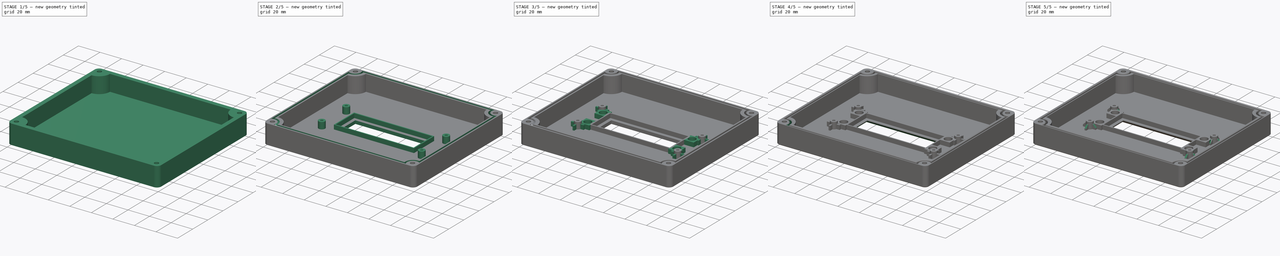
[diagram: build sequence overview — one tinted view per stage of 5, left to right]
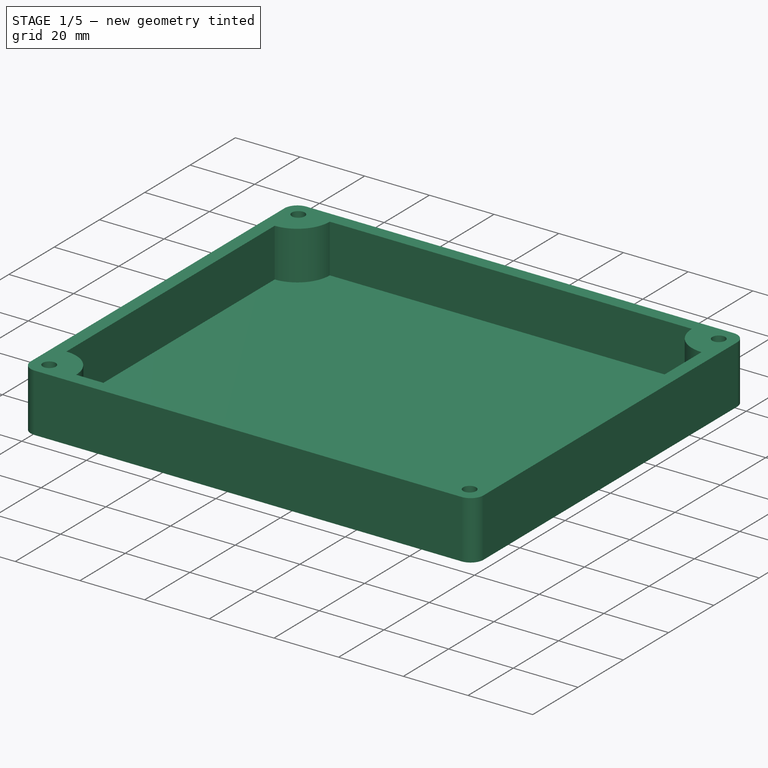
[diagram: stage 1 of 5 — iso view after this stage's code; geometry added in this stage tinted green]
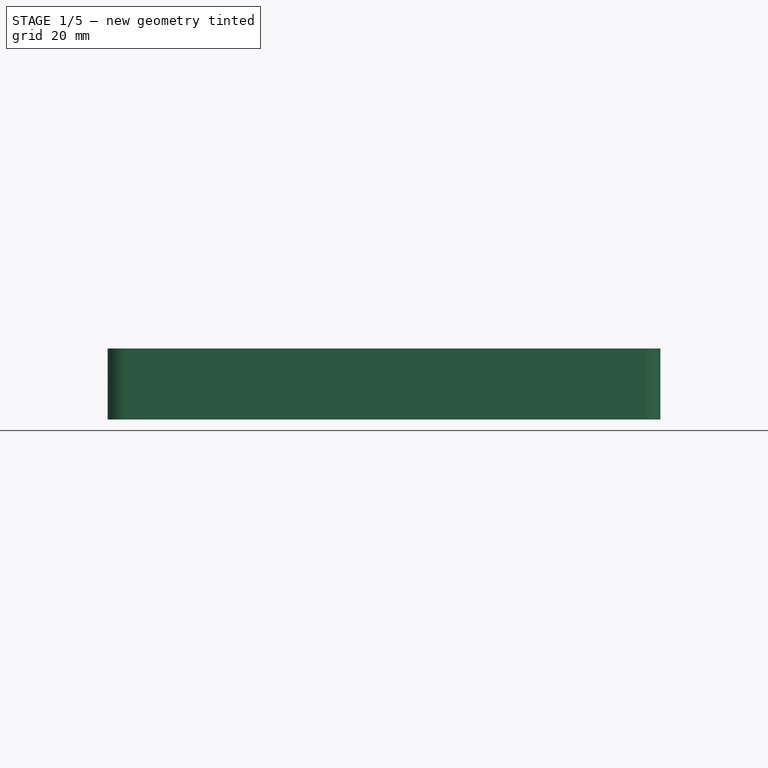
[diagram: stage 1 of 5 — front view after this stage's code; geometry added in this stage tinted green]
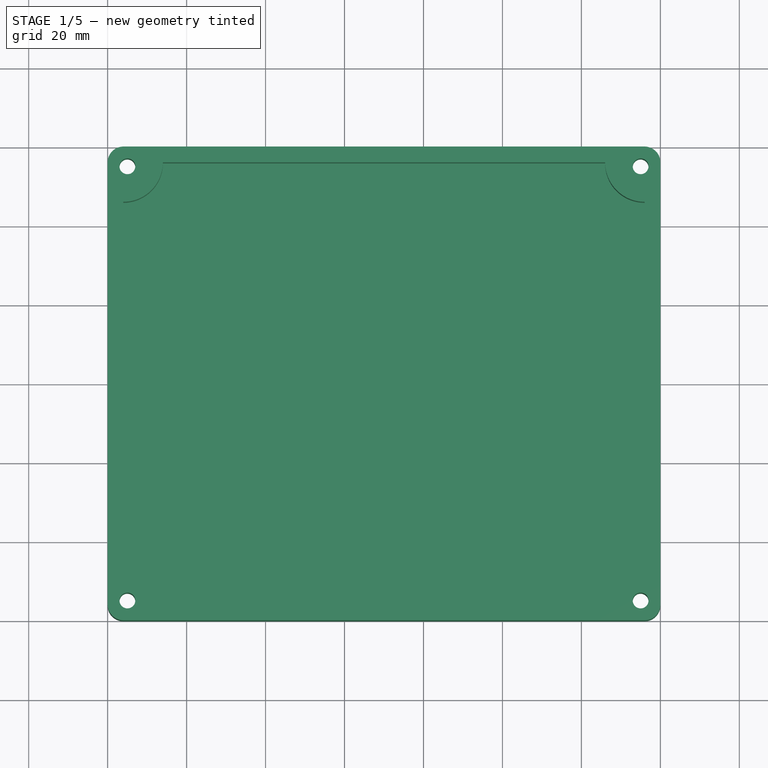
[diagram: stage 1 of 5 — top view after this stage's code; geometry added in this stage tinted green]
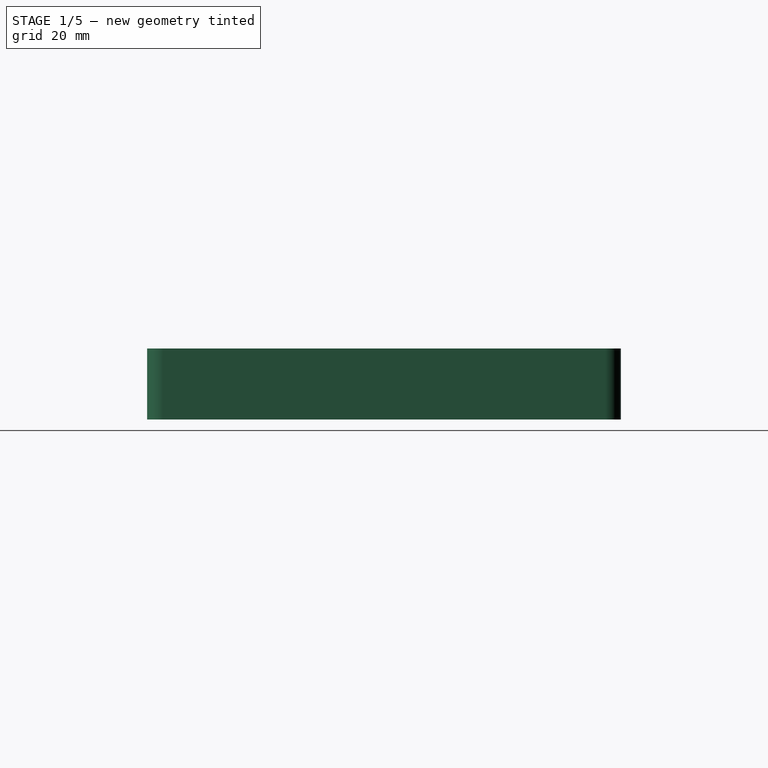
[diagram: stage 1 of 5 — right view after this stage's code; geometry added in this stage tinted green]
FCSTD DOCUMENT  (FreeCAD 0.19R24267 +148 (Git))
Label: outdoor_unit_case_topv2.1
License: All rights reserved
LicenseURL: http://en.wikipedia.org/wiki/All_rights_reserved
objects: Sketcher::SketchObject×10, PartDesign::Chamfer×7, PartDesign::Pad×6, PartDesign::Pocket×4, PartDesign::Body×1
note: 45 computed .brp shape members not serialized (recipe doc carries the construction recipe); baked Part::Feature solids carry a one-line shape summary decoded from their .brp

FEATURE [Sketcher::SketchObject] Sketch
  FullyConstrained = true
  MapMode = 5
  Support = -> [XY_Plane]
  sketch-geometry (12):
    g0: LineSegment StartX=4 StartY=0 StartZ=0 EndX=136 EndY=0 EndZ=0
    g1: LineSegment StartX=140 StartY=4 StartZ=0 EndX=140 EndY=116 EndZ=0
    g2: LineSegment StartX=136 StartY=120 StartZ=0 EndX=4 EndY=120 EndZ=0
    g3: LineSegment StartX=0 StartY=116 StartZ=0 EndX=0 EndY=4 EndZ=0
    g4: LineSegment StartX=4 StartY=116 StartZ=0 EndX=136 EndY=116 EndZ=0
    g5: LineSegment StartX=136 StartY=116 StartZ=0 EndX=136 EndY=4 EndZ=0
    g6: LineSegment StartX=136 StartY=4 StartZ=0 EndX=4 EndY=4 EndZ=0
    g7: LineSegment StartX=4 StartY=4 StartZ=0 EndX=4 EndY=116 EndZ=0
    g8: ArcOfCircle CenterX=4 CenterY=4 CenterZ=0 NormalX=0 NormalY=0 NormalZ=1 AngleXU=0 Radius=4 StartAngle=3.14159 EndAngle=4.71239
    g9: ArcOfCircle CenterX=136 CenterY=4 CenterZ=0 NormalX=0 NormalY=0 NormalZ=1 AngleXU=0 Radius=4 StartAngle=4.71239 EndAngle=6.28319
    g10: ArcOfCircle CenterX=136 CenterY=116 CenterZ=0 NormalX=0 NormalY=0 NormalZ=1 AngleXU=0 Radius=4 StartAngle=-9e-16 EndAngle=1.5708
    g11: ArcOfCircle CenterX=4 CenterY=116 CenterZ=0 NormalX=0 NormalY=0 NormalZ=1 AngleXU=0 Radius=4 StartAngle=1.5708 EndAngle=3.14159
  constraints (28):
    c: Horizontal(g0)
    c: Horizontal(g2)
    c: Vertical(g1)
    c: Vertical(g3)
    c: Coincident(g4,g5)
    c: Coincident(g5,g6)
    c: Coincident(g6,g7)
    c: Coincident(g7,g4)
    c: Horizontal(g4)
    c: Horizontal(g6)
    c: Vertical(g5)
    c: Tangent(g3,g8) = -1.5708
    c: Tangent(g0,g8) = -1.5708
    c: Tangent(g0,g9) = -1.5708
    c: Tangent(g1,g9) = -1.5708
    c: Tangent(g2,g10) = -1.5708
    c: Tangent(g1,g10) = -1.5708
    c: Tangent(g3,g11) = -1.5708
    c: Tangent(g2,g11) = -1.5708
    c: Coincident(g11,g4)
    c: Coincident(g10,g4)
    c: Coincident(g5,g9)
    c: Coincident(g6,g8)
    c: PointOnObject(g3,g-2)
    c: PointOnObject(g0,g-1)
    c: DistanceX(g3,g8) = 4
    c: DistanceY(g0,g2) = 120
    c: DistanceX(g3,g1) = 140
FEATURE [PartDesign::Pad] Pad
  Direction = (1,1,1)
  Length = 3
  Length2 = 100
  Profile = -> Sketch
  Type = 0
FEATURE [Sketcher::SketchObject] Sketch001
  FullyConstrained = true
  MapMode = 5
  Placement = pos=(0,0,3) rot=(0,0,1;0rad)
  Support = -> [Pad]
  sketch-geometry (20):
    g0: LineSegment StartX=4 StartY=0 StartZ=0 EndX=136 EndY=0 EndZ=0
    g1: LineSegment StartX=140 StartY=4 StartZ=0 EndX=140 EndY=116 EndZ=0
    g2: LineSegment StartX=136 StartY=120 StartZ=0 EndX=4 EndY=120 EndZ=0
    g3: LineSegment StartX=0 StartY=116 StartZ=0 EndX=0 EndY=4 EndZ=0
    g4: LineSegment StartX=4 StartY=116 StartZ=0 EndX=136 EndY=116 EndZ=0
    g5: LineSegment StartX=136 StartY=116 StartZ=0 EndX=136 EndY=4 EndZ=0
    g6: LineSegment StartX=136 StartY=4 StartZ=0 EndX=4 EndY=4 EndZ=0
    g7: LineSegment StartX=4 StartY=4 StartZ=0 EndX=4 EndY=116 EndZ=0
    g8: LineSegment StartX=14 StartY=116 StartZ=0 EndX=126 EndY=116 EndZ=0
    g9: LineSegment StartX=136 StartY=106 StartZ=0 EndX=136 EndY=14 EndZ=0
    g10: LineSegment StartX=126 StartY=4 StartZ=0 EndX=14 EndY=4 EndZ=0
    g11: LineSegment StartX=4 StartY=14 StartZ=0 EndX=4 EndY=106 EndZ=0
    g12: ArcOfCircle CenterX=4 CenterY=116 CenterZ=0 NormalX=0 NormalY=0 NormalZ=1 AngleXU=0 Radius=4 StartAngle=1.5708 EndAngle=3.14159
    g13: ArcOfCircle CenterX=136 CenterY=116 CenterZ=0 NormalX=0 NormalY=0 NormalZ=1 AngleXU=0 Radius=4 StartAngle=3e-16 EndAngle=1.5708
    g14: ArcOfCircle CenterX=136 CenterY=4 CenterZ=0 NormalX=0 NormalY=0 NormalZ=1 AngleXU=0 Radius=4 StartAngle=4.71239 EndAngle=6.28319
    g15: ArcOfCircle CenterX=4 CenterY=4 CenterZ=0 NormalX=0 NormalY=0 NormalZ=1 AngleXU=0 Radius=4 StartAngle=3.14159 EndAngle=4.71239
    g16: ArcOfCircle CenterX=4 CenterY=116 CenterZ=0 NormalX=0 NormalY=0 NormalZ=1 AngleXU=0 Radius=10 StartAngle=4.71239 EndAngle=6.28319
    g17: ArcOfCircle CenterX=136 CenterY=116 CenterZ=0 NormalX=0 NormalY=0 NormalZ=1 AngleXU=0 Radius=10 StartAngle=3.14159 EndAngle=4.71239
    g18: ArcOfCircle CenterX=4 CenterY=4 CenterZ=0 NormalX=0 NormalY=0 NormalZ=1 AngleXU=0 Radius=10 StartAngle=0 EndAngle=1.5708
    g19: ArcOfCircle CenterX=136 CenterY=4 CenterZ=0 NormalX=0 NormalY=0 NormalZ=1 AngleXU=0 Radius=10 StartAngle=1.5708 EndAngle=3.14159
  constraints (52):
    c: Horizontal(g0)
    c: Horizontal(g2)
    c: Vertical(g1)
    c: Vertical(g3)
    c: Coincident(g4,g5)
    c: Coincident(g5,g6)
    c: Coincident(g6,g7)
    c: Coincident(g7,g4)
    c: Horizontal(g4)
    c: Horizontal(g6)
    c: Vertical(g5)
    c: Horizontal(g8)
    c: Horizontal(g10)
    c: Vertical(g9)
    c: Vertical(g11)
    c: Tangent(g3,g12) = -1.5708
    c: Tangent(g2,g12) = -1.5708
    c: Tangent(g2,g13) = -1.5708
    c: Tangent(g1,g13) = -1.5708
    c: Tangent(g0,g14) = -1.5708
    c: Tangent(g1,g14) = -1.5708
    c: Tangent(g3,g15) = -1.5708
    c: Tangent(g0,g15) = -1.5708
    c: Coincident(g15,g6)
    c: Coincident(g14,g5)
    c: Coincident(g4,g13)
    c: Coincident(g12,g4)
    c: PointOnObject(g3,g-2)
    c: PointOnObject(g0,g-1)
    c: DistanceY(g0,g2) = 120
    c: DistanceX(g3,g1) = 140
    c: DistanceX(g3,g15) = 4
    c: Coincident(g10,g19)
    c: Coincident(g9,g19)
    c: Coincident(g11,g18)
    c: Coincident(g10,g18)
    c: Coincident(g11,g16)
    c: Coincident(g8,g16)
    c: Coincident(g8,g17)
    c: Coincident(g9,g17)
    c: Coincident(g15,g18)
    c: Coincident(g16,g12)
    c: Coincident(g17,g13)
    c: Coincident(g19,g14)
    c: Equal(g18,g19)
    c: Equal(g19,g17)
    c: Equal(g17,g16)
    c: PointOnObject(g11,g7)
    c: PointOnObject(g10,g6)
    c: PointOnObject(g8,g4)
    c: PointOnObject(g9,g5)
    c: Radius(g18) = 10
FEATURE [PartDesign::Pad] Pad001
  BaseFeature = -> Pad
  Direction = (1,1,1)
  Length = 15
  Length2 = 100
  Profile = -> Sketch001
  Type = 0
FEATURE [Sketcher::SketchObject] Sketch002
  FullyConstrained = true
  MapMode = 5
  Placement = pos=(0,0,18) rot=(0,0,1;0rad)
  Support = -> [Pad001]
  sketch-geometry (8):
    g0: LineSegment StartX=5 StartY=115 StartZ=0 EndX=135 EndY=115 EndZ=0
    g1: LineSegment StartX=135 StartY=115 StartZ=0 EndX=135 EndY=5 EndZ=0
    g2: LineSegment StartX=135 StartY=5 StartZ=0 EndX=5 EndY=5 EndZ=0
    g3: LineSegment StartX=5 StartY=5 StartZ=0 EndX=5 EndY=115 EndZ=0
    g4: Circle CenterX=5 CenterY=115 CenterZ=0 NormalX=0 NormalY=0 NormalZ=1 AngleXU=0 Radius=2
    g5: Circle CenterX=135 CenterY=115 CenterZ=0 NormalX=0 NormalY=0 NormalZ=1 AngleXU=0 Radius=2
    g6: Circle CenterX=135 CenterY=5 CenterZ=0 NormalX=0 NormalY=0 NormalZ=1 AngleXU=0 Radius=2
    g7: Circle CenterX=5 CenterY=5 CenterZ=0 NormalX=0 NormalY=0 NormalZ=1 AngleXU=0 Radius=2
  constraints (20):
    c: Coincident(g0,g1)
    c: Coincident(g1,g2)
    c: Coincident(g2,g3)
    c: Coincident(g3,g0)
    c: Horizontal(g0)
    c: Horizontal(g2)
    c: Vertical(g1)
    c: Vertical(g3)
    c: Coincident(g4,g0)
    c: Coincident(g5,g0)
    c: Coincident(g6,g1)
    c: Coincident(g7,g2)
    c: Equal(g7,g4)
    c: Equal(g4,g5)
    c: Equal(g5,g6)
    c: Radius(g4) = 2
    c: DistanceX(g-1,g7) = 5
    c: DistanceX(g7,g6) = 130
    c: DistanceY(g7,g4) = 110
    c: DistanceY(g-1,g7) = 5
FEATURE [PartDesign::Pocket] Pocket
  BaseFeature = -> Pad001
  Length = 18
  Length2 = 100
  Profile = -> Sketch002
  Type = 0
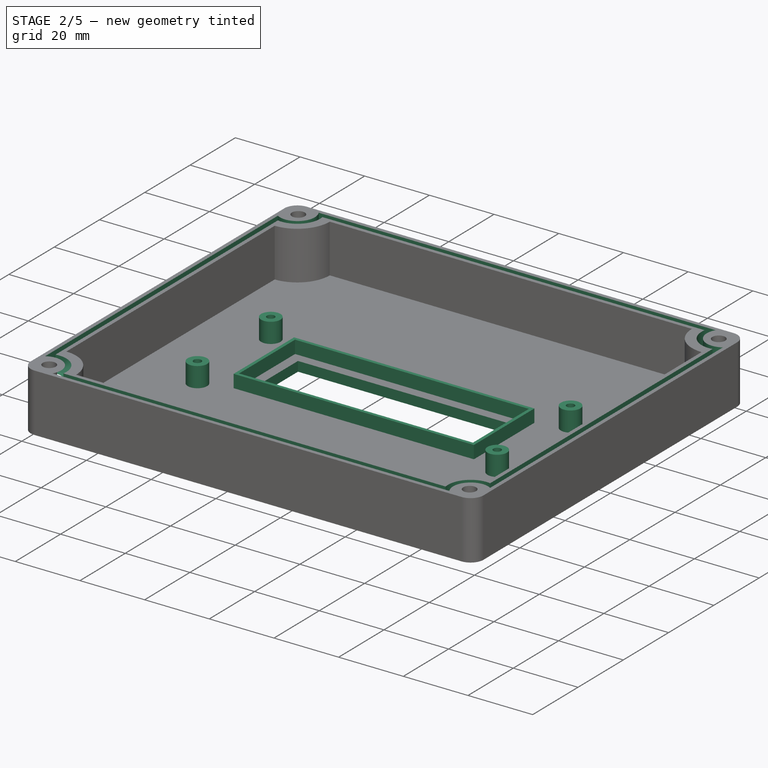
[diagram: stage 2 of 5 — iso view after this stage's code; geometry added in this stage tinted green]
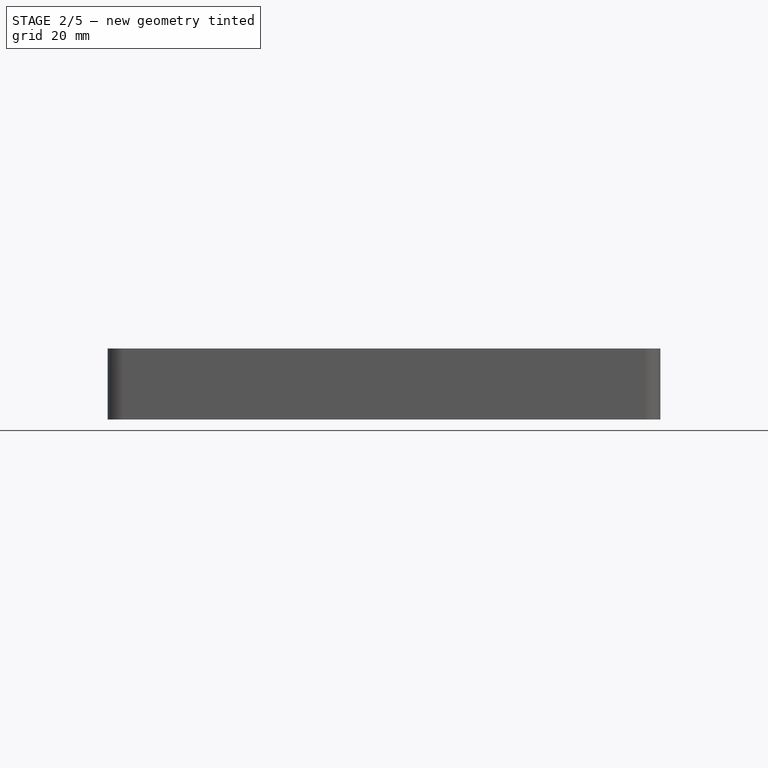
[diagram: stage 2 of 5 — front view after this stage's code; geometry added in this stage tinted green]
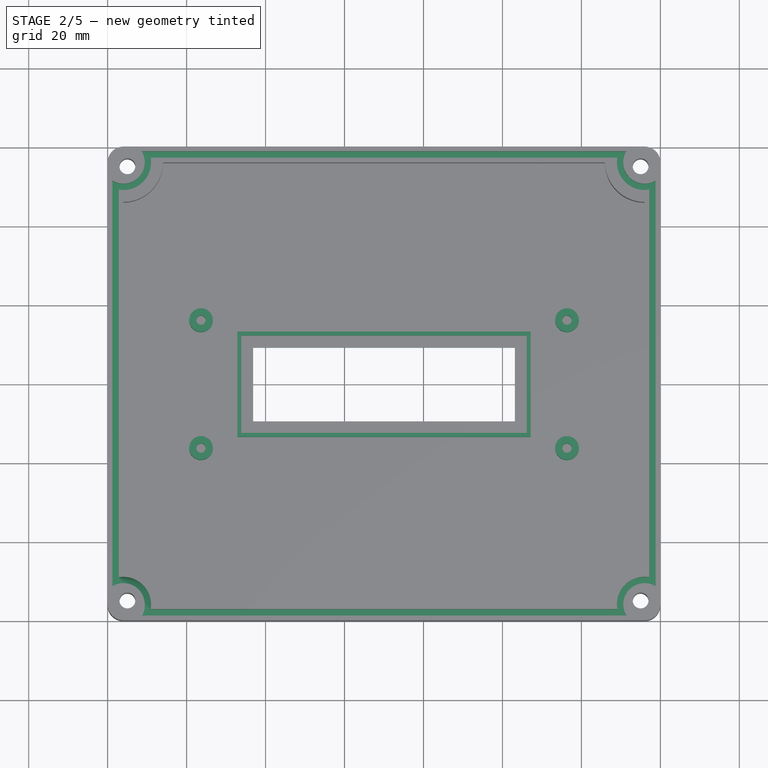
[diagram: stage 2 of 5 — top view after this stage's code; geometry added in this stage tinted green]
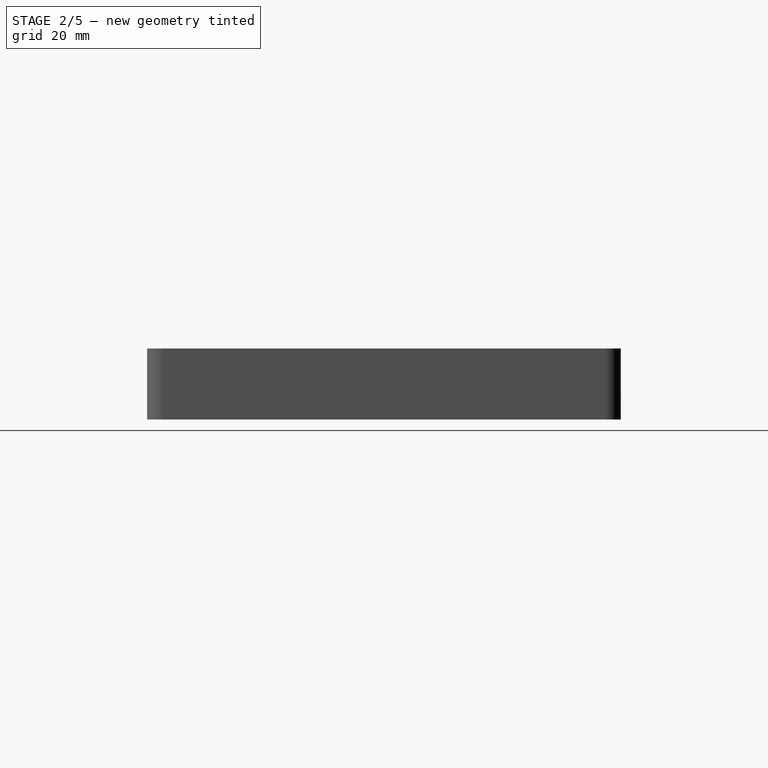
[diagram: stage 2 of 5 — right view after this stage's code; geometry added in this stage tinted green]
FEATURE [Sketcher::SketchObject] Sketch003
  FullyConstrained = true
  MapMode = 5
  Placement = pos=(0,0,18) rot=(0,0,1;0rad)
  Support = -> [Pocket]
  sketch-geometry (28):
    g0: LineSegment StartX=1.2 StartY=118.8 StartZ=0 EndX=138.8 EndY=118.8 EndZ=0
    g1: LineSegment StartX=138.8 StartY=118.8 StartZ=0 EndX=138.8 EndY=1.2 EndZ=0
    g2: LineSegment StartX=138.8 StartY=1.2 StartZ=0 EndX=1.2 EndY=1.2 EndZ=0
    g3: LineSegment StartX=1.2 StartY=1.2 StartZ=0 EndX=1.2 EndY=118.8 EndZ=0
    g4: LineSegment StartX=2.8 StartY=117.2 StartZ=0 EndX=137.2 EndY=117.2 EndZ=0
    g5: LineSegment StartX=137.2 StartY=117.2 StartZ=0 EndX=137.2 EndY=2.8 EndZ=0
    g6: LineSegment StartX=137.2 StartY=2.8 StartZ=0 EndX=2.8 EndY=2.8 EndZ=0
    g7: LineSegment StartX=2.8 StartY=2.8 StartZ=0 EndX=2.8 EndY=117.2 EndZ=0
    g8: LineSegment StartX=4 StartY=116 StartZ=0 EndX=136 EndY=116 EndZ=0
    g9: LineSegment StartX=136 StartY=116 StartZ=0 EndX=136 EndY=4 EndZ=0
    g10: LineSegment StartX=136 StartY=4 StartZ=0 EndX=4 EndY=4 EndZ=0
    g11: LineSegment StartX=4 StartY=4 StartZ=0 EndX=4 EndY=116 EndZ=0
    g12: LineSegment StartX=8.61736 StartY=118.8 StartZ=0 EndX=131.383 EndY=118.8 EndZ=0
    g13: LineSegment StartX=138.8 StartY=111.383 StartZ=0 EndX=138.8 EndY=8.61736 EndZ=0
    g14: LineSegment StartX=131.383 StartY=1.2 StartZ=0 EndX=8.61736 EndY=1.2 EndZ=0
    g15: LineSegment StartX=1.2 StartY=8.61736 StartZ=0 EndX=1.2 EndY=111.383 EndZ=0
    g16: LineSegment StartX=10.8964 StartY=117.2 StartZ=0 EndX=129.104 EndY=117.2 EndZ=0
    g17: LineSegment StartX=137.2 StartY=109.104 StartZ=0 EndX=137.2 EndY=10.8964 EndZ=0
    g18: LineSegment StartX=129.104 StartY=2.8 StartZ=0 EndX=10.8964 EndY=2.8 EndZ=0
    g19: LineSegment StartX=2.8 StartY=10.8964 StartZ=0 EndX=2.8 EndY=109.104 EndZ=0
    g20: ArcOfCircle CenterX=4 CenterY=4 CenterZ=0 NormalX=0 NormalY=0 NormalZ=1 AngleXU=0 Radius=7 StartAngle=6.11091 EndAngle=8.02626
    g21: ArcOfCircle CenterX=4 CenterY=4 CenterZ=0 NormalX=0 NormalY=0 NormalZ=1 AngleXU=0 Radius=5.4 StartAngle=5.73807 EndAngle=8.3991
    g22: ArcOfCircle CenterX=136 CenterY=4 CenterZ=0 NormalX=0 NormalY=0 NormalZ=1 AngleXU=0 Radius=7 StartAngle=1.39852 EndAngle=3.31387
    g23: ArcOfCircle CenterX=136 CenterY=4 CenterZ=0 NormalX=0 NormalY=0 NormalZ=1 AngleXU=0 Radius=5.4 StartAngle=1.02568 EndAngle=3.68671
    g24: ArcOfCircle CenterX=136 CenterY=116 CenterZ=0 NormalX=0 NormalY=0 NormalZ=1 AngleXU=0 Radius=5.4 StartAngle=2.59648 EndAngle=5.25751
    g25: ArcOfCircle CenterX=4 CenterY=116 CenterZ=0 NormalX=0 NormalY=0 NormalZ=1 AngleXU=0 Radius=7 StartAngle=4.54011 EndAngle=6.45546
    g26: ArcOfCircle CenterX=4 CenterY=116 CenterZ=0 NormalX=0 NormalY=0 NormalZ=1 AngleXU=0 Radius=5.4 StartAngle=4.16727 EndAngle=6.8283
    g27: ArcOfCircle CenterX=136 CenterY=116 CenterZ=0 NormalX=0 NormalY=0 NormalZ=1 AngleXU=0 Radius=7 StartAngle=2.96931 EndAngle=4.88467
  constraints (84):
    c: Coincident(g0,g1)
    c: Coincident(g1,g2)
    c: Coincident(g2,g3)
    c: Coincident(g3,g0)
    c: Horizontal(g0)
    c: Horizontal(g2)
    c: Vertical(g1)
    c: Vertical(g3)
    c: Coincident(g4,g5)
    c: Coincident(g5,g6)
    c: Coincident(g6,g7)
    c: Coincident(g7,g4)
    c: Horizontal(g4)
    c: Horizontal(g6)
    c: Vertical(g5)
    c: Vertical(g7)
    c: Coincident(g8,g9)
    c: Coincident(g9,g10)
    c: Coincident(g10,g11)
    c: Coincident(g11,g8)
    c: Horizontal(g8)
    c: Horizontal(g10)
    c: Vertical(g9)
    c: Vertical(g11)
    c: DistanceY(g3,g3) = 117.6
    c: DistanceY(g7,g7) = 114.4
    c: DistanceY(g11,g11) = 112
    c: DistanceX(g0,g0) = 137.6
    c: DistanceX(g4,g4) = 134.4
    c: DistanceX(g8,g8) = 132
    c: DistanceX(g-1,g2) = 1.2
    c: DistanceX(g-1,g10) = 4
    c: DistanceY(g-1,g2) = 1.2
    c: DistanceY(g-1,g10) = 4
    c: DistanceX(g2,g6) = 1.6
    c: DistanceY(g2,g6) = 1.6
    c: Horizontal(g12)
    c: Horizontal(g14)
    c: Vertical(g13)
    c: Vertical(g15)
    c: Horizontal(g16)
    c: Horizontal(g18)
    c: Vertical(g17)
    c: Vertical(g19)
    c: Coincident(g20,g10)
    c: Coincident(g21,g20)
    c: Coincident(g22,g9)
    c: Coincident(g23,g22)
    c: Coincident(g25,g8)
    c: Coincident(g26,g25)
    c: Equal(g24,g26)
    c: Equal(g26,g21)
    c: Equal(g21,g23)
    c: Equal(g20,g22)
    c: Radius(g21) = 5.4
    c: Radius(g20) = 7
    c: Coincident(g14,g21)
    c: Coincident(g15,g21)
    c: Coincident(g12,g26)
    c: Coincident(g15,g26)
    c: Coincident(g16,g25)
    c: Coincident(g19,g25)
    c: Coincident(g19,g20)
    c: Coincident(g18,g20)
    c: Coincident(g17,g22)
    c: Coincident(g18,g22)
    c: Coincident(g14,g23)
    c: Coincident(g13,g23)
    c: Coincident(g13,g24)
    c: Coincident(g12,g24)
    c: Coincident(g27,g24)
    c: Equal(g27,g20)
    c: Coincident(g16,g27)
    c: Coincident(g17,g27)
    c: PointOnObject(g12,g0)
    c: PointOnObject(g16,g4)
    c: PointOnObject(g13,g1)
    c: PointOnObject(g17,g5)
    c: PointOnObject(g14,g2)
    c: PointOnObject(g18,g6)
    c: PointOnObject(g19,g7)
    c: PointOnObject(g15,g3)
    c: Coincident(g24,g8)
    c: Equal(g25,g20)
FEATURE [PartDesign::Pocket] Pocket001
  BaseFeature = -> Pocket
  Length = 4.4
  Length2 = 100
  Profile = -> Sketch003
  Type = 0
FEATURE [Sketcher::SketchObject] Sketch004
  FullyConstrained = true
  MapMode = 5
  Placement = pos=(0,0,3) rot=(0,0,1;0rad)
  Support = -> [Pocket001]
  sketch-geometry (12):
    g0: LineSegment StartX=23.65 StartY=76.2 StartZ=0 EndX=116.35 EndY=76.2 EndZ=0
    g1: LineSegment StartX=116.35 StartY=76.2 StartZ=0 EndX=116.35 EndY=43.8 EndZ=0
    g2: LineSegment StartX=116.35 StartY=43.8 StartZ=0 EndX=23.65 EndY=43.8 EndZ=0
    g3: LineSegment StartX=23.65 StartY=43.8 StartZ=0 EndX=23.65 EndY=76.2 EndZ=0
    g4: Circle CenterX=116.35 CenterY=76.2 CenterZ=0 NormalX=0 NormalY=0 NormalZ=1 AngleXU=0 Radius=3
    g5: Circle CenterX=116.35 CenterY=76.2 CenterZ=0 NormalX=0 NormalY=0 NormalZ=1 AngleXU=0 Radius=1.2
    g6: Circle CenterX=23.65 CenterY=76.2 CenterZ=0 NormalX=0 NormalY=0 NormalZ=1 AngleXU=0 Radius=3
    g7: Circle CenterX=23.65 CenterY=76.2 CenterZ=0 NormalX=0 NormalY=0 NormalZ=1 AngleXU=0 Radius=1.2
    g8: Circle CenterX=23.65 CenterY=43.8 CenterZ=0 NormalX=0 NormalY=0 NormalZ=1 AngleXU=0 Radius=3
    g9: Circle CenterX=23.65 CenterY=43.8 CenterZ=0 NormalX=0 NormalY=0 NormalZ=1 AngleXU=0 Radius=1.2
    g10: Circle CenterX=116.35 CenterY=43.8 CenterZ=0 NormalX=0 NormalY=0 NormalZ=1 AngleXU=0 Radius=3
    g11: Circle CenterX=116.35 CenterY=43.8 CenterZ=0 NormalX=0 NormalY=0 NormalZ=1 AngleXU=0 Radius=1.2
  constraints (28):
    c: Coincident(g0,g1)
    c: Coincident(g1,g2)
    c: Coincident(g2,g3)
    c: Coincident(g3,g0)
    c: Horizontal(g0)
    c: Horizontal(g2)
    c: Vertical(g1)
    c: Vertical(g3)
    c: Coincident(g4,g0)
    c: Coincident(g5,g4)
    c: Coincident(g6,g0)
    c: Coincident(g7,g6)
    c: Coincident(g8,g2)
    c: Coincident(g9,g8)
    c: Coincident(g10,g1)
    c: Coincident(g11,g10)
    c: Equal(g6,g4)
    c: Equal(g6,g10)
    c: Equal(g6,g8)
    c: Radius(g6) = 3
    c: Equal(g7,g5)
    c: Equal(g7,g11)
    c: Equal(g7,g9)
    c: Radius(g7) = 1.2
    c: DistanceX(g2,g2) = 92.7
    c: DistanceY(g3,g3) = 32.4
    c: DistanceX(g-1,g8) = 23.65
    c: DistanceY(g-1,g8) = 43.8
FEATURE [PartDesign::Pad] Pad002
  BaseFeature = -> Pocket001
  Direction = (1,1,1)
  Length = 6.2
  Length2 = 100
  Profile = -> Sketch004
  Type = 0
FEATURE [Sketcher::SketchObject] Sketch005
  FullyConstrained = true
  MapMode = 5
  Placement = pos=(0,0,3) rot=(0,0,1;0rad)
  Support = -> [Pad002]
  sketch-geometry (8):
    g0: LineSegment StartX=33.85 StartY=72.35 StartZ=0 EndX=106.15 EndY=72.35 EndZ=0
    g1: LineSegment StartX=106.15 StartY=72.35 StartZ=0 EndX=106.15 EndY=47.65 EndZ=0
    g2: LineSegment StartX=106.15 StartY=47.65 StartZ=0 EndX=33.85 EndY=47.65 EndZ=0
    g3: LineSegment StartX=33.85 StartY=47.65 StartZ=0 EndX=33.85 EndY=72.35 EndZ=0
    g4: LineSegment StartX=32.85 StartY=73.35 StartZ=0 EndX=107.15 EndY=73.35 EndZ=0
    g5: LineSegment StartX=107.15 StartY=73.35 StartZ=0 EndX=107.15 EndY=46.65 EndZ=0
    g6: LineSegment StartX=107.15 StartY=46.65 StartZ=0 EndX=32.85 EndY=46.65 EndZ=0
    g7: LineSegment StartX=32.85 StartY=46.65 StartZ=0 EndX=32.85 EndY=73.35 EndZ=0
  constraints (24):
    c: Coincident(g0,g1)
    c: Coincident(g1,g2)
    c: Coincident(g2,g3)
    c: Coincident(g3,g0)
    c: Horizontal(g0)
    c: Horizontal(g2)
    c: Vertical(g1)
    c: Vertical(g3)
    c: DistanceX(g2,g2) = 72.3
    c: DistanceY(g3,g3) = 24.7
    c: Coincident(g4,g5)
    c: Coincident(g5,g6)
    c: Coincident(g6,g7)
    c: Coincident(g7,g4)
    c: Horizontal(g4)
    c: Horizontal(g6)
    c: Vertical(g5)
    c: Vertical(g7)
    c: DistanceY(g6,g2) = 1
    c: DistanceX(g6,g2) = 1
    c: DistanceY(g7,g7) = 26.7
    c: DistanceX(g6,g6) = 74.3
    c: DistanceX(g-1,g6) = 32.85
    c: DistanceY(g-1,g6) = 46.65
FEATURE [PartDesign::Pad] Pad003
  BaseFeature = -> Pad002
  Direction = (1,1,1)
  Length = 4
  Length2 = 100
  Profile = -> Sketch005
  Type = 0
FEATURE [Sketcher::SketchObject] Sketch006
  FullyConstrained = true
  MapMode = 5
  Placement = pos=(0,0,3) rot=(0,0,1;0rad)
  Support = -> [Pad003]
  sketch-geometry (4):
    g0: LineSegment StartX=36.85 StartY=69.35 StartZ=0 EndX=103.15 EndY=69.35 EndZ=0
    g1: LineSegment StartX=103.15 StartY=69.35 StartZ=0 EndX=103.15 EndY=50.65 EndZ=0
    g2: LineSegment StartX=103.15 StartY=50.65 StartZ=0 EndX=36.85 EndY=50.65 EndZ=0
    g3: LineSegment StartX=36.85 StartY=50.65 StartZ=0 EndX=36.85 EndY=69.35 EndZ=0
  constraints (12):
    c: Coincident(g0,g1)
    c: Coincident(g1,g2)
    c: Coincident(g2,g3)
    c: Coincident(g3,g0)
    c: Horizontal(g0)
    c: Horizontal(g2)
    c: Vertical(g1)
    c: Vertical(g3)
    c: DistanceX(g2,g2) = 66.3
    c: DistanceY(g3,g3) = 18.7
    c: DistanceX(g-1,g2) = 36.85
    c: DistanceY(g-1,g2) = 50.65
FEATURE [PartDesign::Pocket] Pocket002
  BaseFeature = -> Pad003
  Length = 3
  Length2 = 100
  Profile = -> Sketch006
  Type = 0
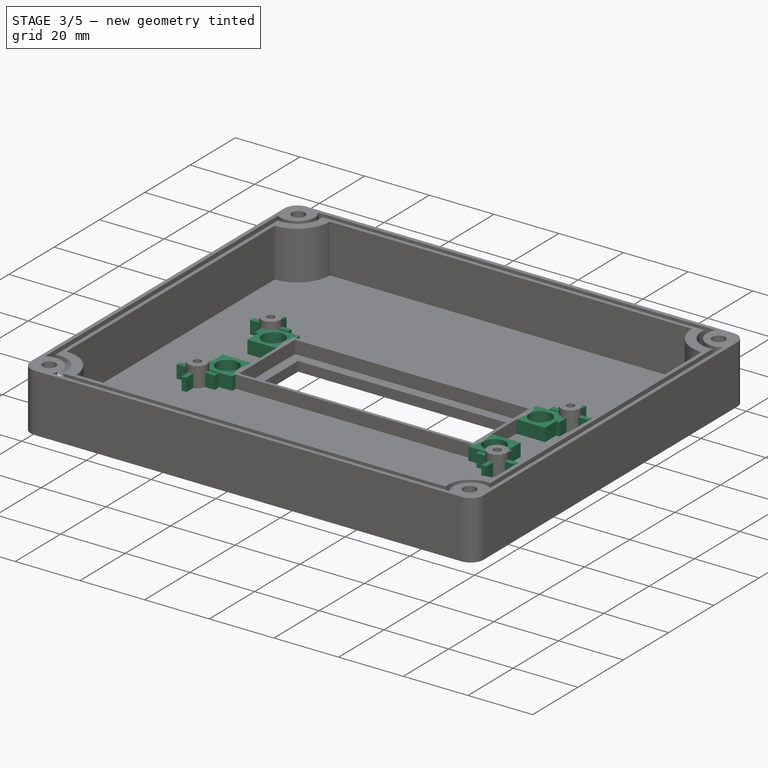
[diagram: stage 3 of 5 — iso view after this stage's code; geometry added in this stage tinted green]
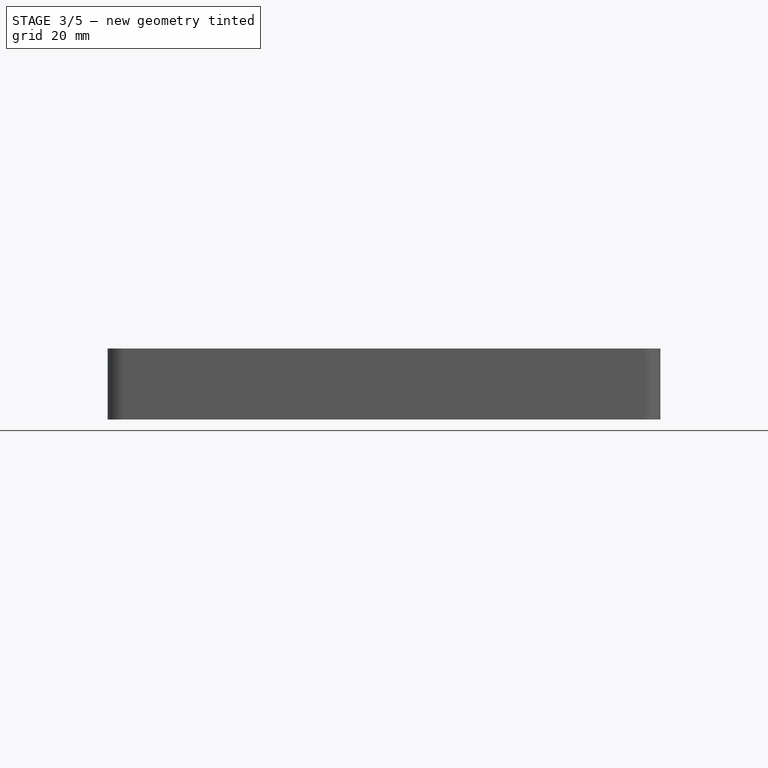
[diagram: stage 3 of 5 — front view after this stage's code; geometry added in this stage tinted green]
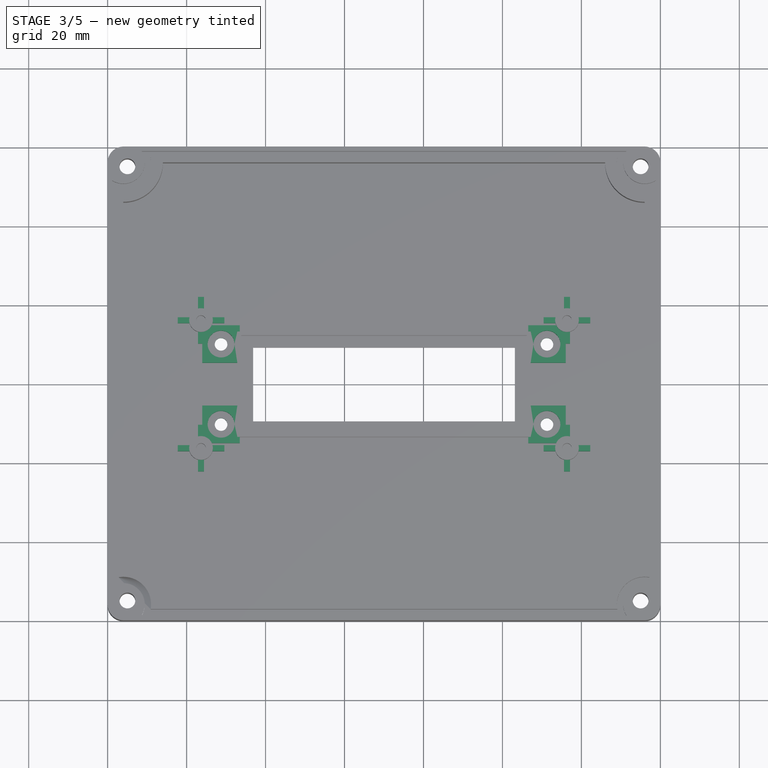
[diagram: stage 3 of 5 — top view after this stage's code; geometry added in this stage tinted green]
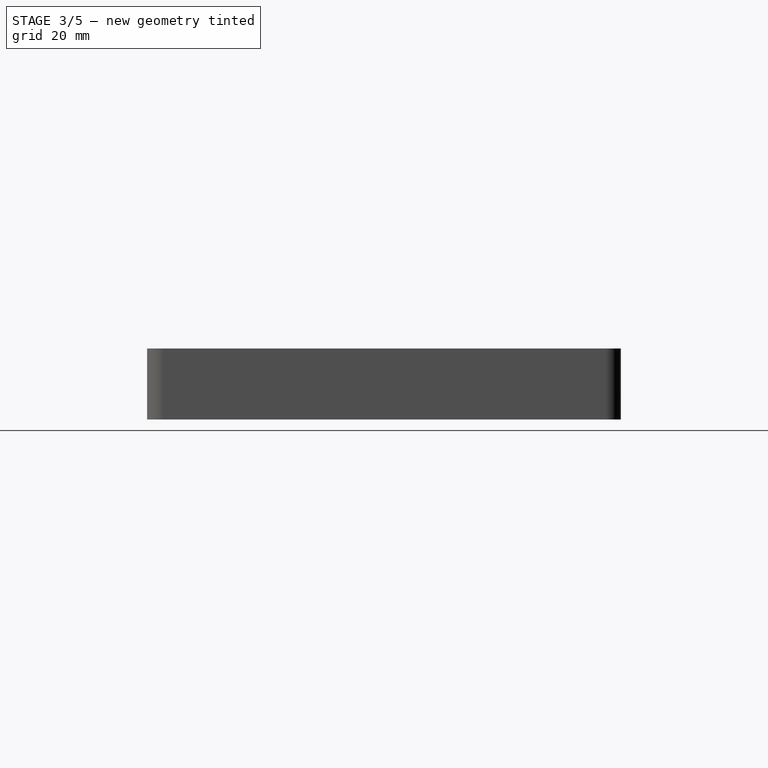
[diagram: stage 3 of 5 — right view after this stage's code; geometry added in this stage tinted green]
FEATURE [Sketcher::SketchObject] Sketch008
  FullyConstrained = true
  MapMode = 5
  Placement = pos=(0,0,3) rot=(0,0,1;0rad)
  sketch-geometry (8):
    g0: LineSegment StartX=28.725 StartY=70.16 StartZ=0 EndX=111.275 EndY=70.16 EndZ=0
    g1: LineSegment StartX=111.275 StartY=70.16 StartZ=0 EndX=111.275 EndY=49.84 EndZ=0
    g2: LineSegment StartX=111.275 StartY=49.84 StartZ=0 EndX=28.725 EndY=49.84 EndZ=0
    g3: LineSegment StartX=28.725 StartY=49.84 StartZ=0 EndX=28.725 EndY=70.16 EndZ=0
    g4: Circle CenterX=28.725 CenterY=70.16 CenterZ=0 NormalX=0 NormalY=0 NormalZ=1 AngleXU=0 Radius=1.6
    g5: Circle CenterX=111.275 CenterY=70.16 CenterZ=0 NormalX=0 NormalY=0 NormalZ=1 AngleXU=0 Radius=1.6
    g6: Circle CenterX=111.275 CenterY=49.84 CenterZ=0 NormalX=0 NormalY=0 NormalZ=1 AngleXU=0 Radius=1.6
    g7: Circle CenterX=28.725 CenterY=49.84 CenterZ=0 NormalX=0 NormalY=0 NormalZ=1 AngleXU=0 Radius=1.6
  constraints (20):
    c: Coincident(g0,g1)
    c: Coincident(g1,g2)
    c: Coincident(g2,g3)
    c: Coincident(g3,g0)
    c: Horizontal(g0)
    c: Horizontal(g2)
    c: Vertical(g1)
    c: Vertical(g3)
    c: DistanceY(g3,g3) = 20.32
    c: DistanceX(g2,g2) = 82.55
    c: DistanceY(g-1,g2) = 49.84
    c: DistanceX(g-1,g2) = 28.725
    c: Coincident(g4,g0)
    c: Coincident(g5,g0)
    c: Coincident(g6,g1)
    c: Coincident(g7,g2)
    c: Equal(g7,g4)
    c: Equal(g4,g5)
    c: Equal(g5,g6)
    c: Radius(g4) = 1.6
FEATURE [PartDesign::Pocket] Pocket003
  BaseFeature = -> Pocket002
  Length = 3
  Length2 = 100
  Profile = -> Sketch008
  Type = 0
FEATURE [Sketcher::SketchObject] Sketch009
  FullyConstrained = true
  MapMode = 5
  Placement = pos=(0,0,3) rot=(0,0,1;0rad)
  Support = -> [Pocket003]
  sketch-geometry (68):
    g0: LineSegment StartX=23.65 StartY=76.2 StartZ=0 EndX=116.35 EndY=76.2 EndZ=0
    g1: LineSegment StartX=116.35 StartY=76.2 StartZ=0 EndX=116.35 EndY=43.8 EndZ=0
    g2: LineSegment StartX=116.35 StartY=43.8 StartZ=0 EndX=23.65 EndY=43.8 EndZ=0
    g3: LineSegment StartX=23.65 StartY=43.8 StartZ=0 EndX=23.65 EndY=76.2 EndZ=0
    g4: ArcOfCircle CenterX=23.65 CenterY=43.8 CenterZ=0 NormalX=0 NormalY=0 NormalZ=1 AngleXU=0 Radius=3 StartAngle=2.88891 EndAngle=3.39427
    g5: ArcOfCircle CenterX=23.65 CenterY=76.2 CenterZ=0 NormalX=0 NormalY=0 NormalZ=1 AngleXU=0 Radius=3 StartAngle=2.88891 EndAngle=3.39427
    g6: ArcOfCircle CenterX=116.35 CenterY=76.2 CenterZ=0 NormalX=0 NormalY=0 NormalZ=1 AngleXU=0 Radius=3 StartAngle=1.31812 EndAngle=1.82348
    g7: ArcOfCircle CenterX=116.35 CenterY=43.8 CenterZ=0 NormalX=0 NormalY=0 NormalZ=1 AngleXU=0 Radius=3 StartAngle=1.31812 EndAngle=1.82348
    g8: LineSegment StartX=26.5547 StartY=76.95 StartZ=0 EndX=29.5547 EndY=76.95 EndZ=0
    g9: LineSegment StartX=29.5547 StartY=76.95 StartZ=0 EndX=29.5547 EndY=75.45 EndZ=0
    g10: LineSegment StartX=29.5547 StartY=75.45 StartZ=0 EndX=26.5547 EndY=75.45 EndZ=0
    g11: LineSegment StartX=24.4 StartY=79.1047 StartZ=0 EndX=24.4 EndY=82.1047 EndZ=0
    g12: LineSegment StartX=24.4 StartY=82.1047 StartZ=0 EndX=22.9 EndY=82.1047 EndZ=0
    g13: LineSegment StartX=22.9 StartY=82.1047 StartZ=0 EndX=22.9 EndY=79.1047 EndZ=0
    g14: LineSegment StartX=20.7453 StartY=76.95 StartZ=0 EndX=17.7453 EndY=76.95 EndZ=0
    g15: LineSegment StartX=17.7453 StartY=76.95 StartZ=0 EndX=17.7453 EndY=75.45 EndZ=0
    g16: LineSegment StartX=17.7453 StartY=75.45 StartZ=0 EndX=20.7453 EndY=75.45 EndZ=0
    g17: LineSegment StartX=22.9 StartY=73.2953 StartZ=0 EndX=22.9 EndY=70.2953 EndZ=0
    g18: LineSegment StartX=22.9 StartY=70.2953 StartZ=0 EndX=24.4 EndY=70.2953 EndZ=0
    g19: LineSegment StartX=24.4 StartY=70.2953 StartZ=0 EndX=24.4 EndY=73.2953 EndZ=0
    g20: LineSegment StartX=115.6 StartY=79.1047 StartZ=0 EndX=115.6 EndY=82.1047 EndZ=0
    g21: LineSegment StartX=115.6 StartY=82.1047 StartZ=0 EndX=117.1 EndY=82.1047 EndZ=0
    g22: LineSegment StartX=117.1 StartY=82.1047 StartZ=0 EndX=117.1 EndY=79.1047 EndZ=0
    g23: LineSegment StartX=113.445 StartY=76.95 StartZ=0 EndX=110.445 EndY=76.95 EndZ=0
    g24: LineSegment StartX=110.445 StartY=76.95 StartZ=0 EndX=110.445 EndY=75.45 EndZ=0
    g25: LineSegment StartX=110.445 StartY=75.45 StartZ=0 EndX=113.445 EndY=75.45 EndZ=0
    g26: LineSegment StartX=115.6 StartY=73.2953 StartZ=0 EndX=115.6 EndY=70.2953 EndZ=0
    g27: LineSegment StartX=115.6 StartY=70.2953 StartZ=0 EndX=117.1 EndY=70.2953 EndZ=0
    g28: LineSegment StartX=117.1 StartY=70.2953 StartZ=0 EndX=117.1 EndY=73.2953 EndZ=0
    g29: LineSegment StartX=119.255 StartY=75.45 StartZ=0 EndX=122.255 EndY=75.45 EndZ=0
    g30: LineSegment StartX=122.255 StartY=75.45 StartZ=0 EndX=122.255 EndY=76.95 EndZ=0
    g31: LineSegment StartX=122.255 StartY=76.95 StartZ=0 EndX=119.255 EndY=76.95 EndZ=0
    g32: LineSegment StartX=22.9 StartY=46.7047 StartZ=0 EndX=22.9 EndY=49.7047 EndZ=0
    g33: LineSegment StartX=22.9 StartY=49.7047 StartZ=0 EndX=24.4 EndY=49.7047 EndZ=0
    g34: LineSegment StartX=24.4 StartY=49.7047 StartZ=0 EndX=24.4 EndY=46.7047 EndZ=0
    g35: LineSegment StartX=26.5547 StartY=44.55 StartZ=0 EndX=29.5547 EndY=44.55 EndZ=0
    g36: LineSegment StartX=29.5547 StartY=44.55 StartZ=0 EndX=29.5547 EndY=43.05 EndZ=0
    g37: LineSegment StartX=29.5547 StartY=43.05 StartZ=0 EndX=26.5547 EndY=43.05 EndZ=0
    g38: LineSegment StartX=20.7453 StartY=44.55 StartZ=0 EndX=17.7453 EndY=44.55 EndZ=0
    g39: LineSegment StartX=17.7453 StartY=44.55 StartZ=0 EndX=17.7453 EndY=43.05 EndZ=0
    g40: LineSegment StartX=17.7453 StartY=43.05 StartZ=0 EndX=20.7453 EndY=43.05 EndZ=0
    g41: LineSegment StartX=22.9 StartY=40.8953 StartZ=0 EndX=22.9 EndY=37.8953 EndZ=0
    g42: LineSegment StartX=22.9 StartY=37.8953 StartZ=0 EndX=24.4 EndY=37.8953 EndZ=0
    g43: LineSegment StartX=24.4 StartY=37.8953 StartZ=0 EndX=24.4 EndY=40.8953 EndZ=0
    g44: LineSegment StartX=115.6 StartY=46.7047 StartZ=0 EndX=115.6 EndY=49.7047 EndZ=0
    g45: LineSegment StartX=115.6 StartY=49.7047 StartZ=0 EndX=117.1 EndY=49.7047 EndZ=0
    g46: LineSegment StartX=117.1 StartY=49.7047 StartZ=0 EndX=117.1 EndY=46.7047 EndZ=0
    g47: LineSegment StartX=119.255 StartY=44.55 StartZ=0 EndX=122.255 EndY=44.55 EndZ=0
    g48: LineSegment StartX=122.255 StartY=44.55 StartZ=0 EndX=122.255 EndY=43.05 EndZ=0
    g49: LineSegment StartX=122.255 StartY=43.05 StartZ=0 EndX=119.255 EndY=43.05 EndZ=0
    g50: LineSegment StartX=117.1 StartY=40.8953 StartZ=0 EndX=117.1 EndY=37.8953 EndZ=0
    g51: LineSegment StartX=117.1 StartY=37.8953 StartZ=0 EndX=115.6 EndY=37.8953 EndZ=0
    g52: LineSegment StartX=115.6 StartY=37.8953 StartZ=0 EndX=115.6 EndY=40.8953 EndZ=0
    g53: LineSegment StartX=113.445 StartY=44.55 StartZ=0 EndX=110.445 EndY=44.55 EndZ=0
    g54: LineSegment StartX=110.445 StartY=44.55 StartZ=0 EndX=110.445 EndY=43.05 EndZ=0
    g55: LineSegment StartX=110.445 StartY=43.05 StartZ=0 EndX=113.445 EndY=43.05 EndZ=0
    g56: ArcOfCircle CenterX=23.65 CenterY=76.2 CenterZ=0 NormalX=0 NormalY=0 NormalZ=1 AngleXU=0 Radius=3 StartAngle=1.31812 EndAngle=1.82348
    g57: ArcOfCircle CenterX=23.65 CenterY=76.2 CenterZ=0 NormalX=0 NormalY=0 NormalZ=1 AngleXU=0 Radius=3 StartAngle=6.03051 EndAngle=6.53587
    g58: ArcOfCircle CenterX=23.65 CenterY=76.2 CenterZ=0 NormalX=0 NormalY=0 NormalZ=1 AngleXU=0 Radius=3 StartAngle=4.45971 EndAngle=4.96507
    g59: ArcOfCircle CenterX=116.35 CenterY=76.2 CenterZ=0 NormalX=0 NormalY=0 NormalZ=1 AngleXU=0 Radius=3 StartAngle=2.88891 EndAngle=3.39427
    g60: ArcOfCircle CenterX=116.35 CenterY=76.2 CenterZ=0 NormalX=0 NormalY=0 NormalZ=1 AngleXU=0 Radius=3 StartAngle=4.45971 EndAngle=4.96507
    g61: ArcOfCircle CenterX=116.35 CenterY=76.2 CenterZ=0 NormalX=0 NormalY=0 NormalZ=1 AngleXU=0 Radius=3 StartAngle=6.03051 EndAngle=6.53587
    g62: ArcOfCircle CenterX=116.35 CenterY=43.8 CenterZ=0 NormalX=0 NormalY=0 NormalZ=1 AngleXU=0 Radius=3 StartAngle=2.88891 EndAngle=3.39427
    g63: ArcOfCircle CenterX=116.35 CenterY=43.8 CenterZ=0 NormalX=0 NormalY=0 NormalZ=1 AngleXU=0 Radius=3 StartAngle=4.45971 EndAngle=4.96507
    g64: ArcOfCircle CenterX=116.35 CenterY=43.8 CenterZ=0 NormalX=0 NormalY=0 NormalZ=1 AngleXU=0 Radius=3 StartAngle=6.03051 EndAngle=6.53587
    g65: ArcOfCircle CenterX=23.65 CenterY=43.8 CenterZ=0 NormalX=0 NormalY=0 NormalZ=1 AngleXU=0 Radius=3 StartAngle=1.31812 EndAngle=1.82348
    g66: ArcOfCircle CenterX=23.65 CenterY=43.8 CenterZ=0 NormalX=0 NormalY=0 NormalZ=1 AngleXU=0 Radius=3 StartAngle=6.03051 EndAngle=6.53587
    g67: ArcOfCircle CenterX=23.65 CenterY=43.8 CenterZ=0 NormalX=0 NormalY=0 NormalZ=1 AngleXU=0 Radius=3 StartAngle=4.45971 EndAngle=4.96507
  constraints (212):
    c: Coincident(g0,g1)
    c: Coincident(g1,g2)
    c: Coincident(g2,g3)
    c: Coincident(g3,g0)
    c: Horizontal(g0)
    c: Horizontal(g2)
    c: Vertical(g1)
    c: Vertical(g3)
    c: DistanceX(g2,g2) = 92.7
    c: DistanceY(g3,g3) = 32.4
    c: DistanceY(g-1,g2) = 43.8
    c: DistanceX(g-1,g0) = 23.65
    c: Coincident(g4,g2)
    c: Coincident(g5,g0)
    c: Coincident(g6,g0)
    c: Coincident(g7,g1)
    c: Radius(g5) = 3
    c: Equal(g5,g4)
    c: Equal(g4,g6)
    c: Equal(g6,g7)
    c: Horizontal(g8)
    c: Coincident(g9,g8)
    c: Vertical(g9)
    c: Coincident(g10,g9)
    c: Horizontal(g10)
    c: Vertical(g11)
    c: Coincident(g12,g11)
    c: Horizontal(g12)
    c: Coincident(g13,g12)
    c: Vertical(g13)
    c: Horizontal(g14)
    c: Coincident(g15,g14)
    c: Vertical(g15)
    c: Coincident(g16,g15)
    c: Horizontal(g16)
    c: Vertical(g17)
    c: Coincident(g18,g17)
    c: Horizontal(g18)
    c: Coincident(g19,g18)
    c: Vertical(g19)
    c: Vertical(g20)
    c: Coincident(g21,g20)
    c: Horizontal(g21)
    c: Coincident(g22,g21)
    c: Vertical(g22)
    c: Horizontal(g23)
    c: Coincident(g24,g23)
    c: Vertical(g24)
    c: Coincident(g25,g24)
    c: PointOnObject(g25,g6)
    c: Horizontal(g25)
    c: PointOnObject(g26,g6)
    c: Vertical(g26)
    c: Coincident(g27,g26)
    c: Horizontal(g27)
    c: Coincident(g28,g27)
    c: PointOnObject(g28,g6)
    c: Vertical(g28)
    c: PointOnObject(g29,g6)
    c: Horizontal(g29)
    c: Coincident(g30,g29)
    c: Vertical(g30)
    c: Coincident(g31,g30)
    c: Horizontal(g31)
    c: Vertical(g32)
    c: Coincident(g33,g32)
    c: Horizontal(g33)
    c: Coincident(g34,g33)
    c: Vertical(g34)
    c: Horizontal(g35)
    c: Coincident(g36,g35)
    c: Vertical(g36)
    c: Coincident(g37,g36)
    c: Horizontal(g37)
    c: Horizontal(g38)
    c: Coincident(g39,g38)
    c: Vertical(g39)
    c: Coincident(g40,g39)
    c: Horizontal(g40)
    c: Vertical(g41)
    c: Coincident(g42,g41)
    c: Horizontal(g42)
    c: Coincident(g43,g42)
    c: Vertical(g43)
    c: Vertical(g44)
    c: Coincident(g45,g44)
    c: Horizontal(g45)
    c: Coincident(g46,g45)
    c: Vertical(g46)
    c: Horizontal(g47)
    c: Coincident(g48,g47)
    c: Vertical(g48)
    c: Coincident(g49,g48)
    c: PointOnObject(g49,g7)
    c: Horizontal(g49)
    c: PointOnObject(g50,g7)
    c: Vertical(g50)
    c: Coincident(g51,g50)
    c: Horizontal(g51)
    c: Coincident(g52,g51)
    c: PointOnObject(g52,g7)
    c: Vertical(g52)
    c: Horizontal(g53)
    c: Coincident(g54,g53)
    c: Vertical(g54)
    c: Coincident(g55,g54)
    c: PointOnObject(g55,g7)
    c: Horizontal(g55)
    c: DistanceY(g11,g11) = 3
    c: DistanceX(g12,g12) = 1.5
    c: Equal(g11,g13)
    c: Equal(g13,g14)
    c: Equal(g14,g16)
    c: Equal(g16,g8)
    c: Equal(g8,g10)
    c: Equal(g10,g19)
    c: Equal(g19,g17)
    c: Equal(g17,g20)
    c: Equal(g20,g22)
    c: Equal(g22,g23)
    c: Equal(g23,g25)
    c: Equal(g25,g26)
    c: Equal(g26,g28)
    c: Equal(g28,g29)
    c: Equal(g29,g31)
    c: Equal(g31,g32)
    c: Equal(g32,g34)
    c: Equal(g34,g38)
    c: Equal(g38,g40)
    c: Equal(g40,g35)
    c: Equal(g35,g37)
    c: Equal(g37,g43)
    c: Equal(g43,g41)
    c: Equal(g41,g46)
    c: Equal(g46,g44)
    c: Equal(g44,g53)
    c: Equal(g53,g55)
    c: Equal(g55,g49)
    c: Equal(g49,g47)
    c: Equal(g47,g52)
    c: Equal(g52,g50)
    c: Equal(g12,g9)
    c: Equal(g9,g18)
    c: Equal(g18,g15)
    c: Equal(g15,g21)
    c: Equal(g21,g24)
    c: Equal(g24,g30)
    c: Equal(g30,g27)
    c: Equal(g27,g45)
    c: Equal(g45,g54)
    c: Equal(g54,g51)
    c: Equal(g51,g48)
    c: Equal(g48,g33)
    c: Equal(g33,g36)
    c: Equal(g36,g39)
    c: Equal(g39,g42)
    c: Coincident(g5,g14)
    c: Coincident(g56,g13)
    c: Equal(g5,g56)
    c: Coincident(g57,g8)
    c: Coincident(g56,g11)
    c: Coincident(g5,g56)
    c: Equal(g5,g57)
    c: Coincident(g58,g19)
    c: Coincident(g57,g10)
    c: Coincident(g5,g57)
    c: Equal(g5,g58)
    c: Coincident(g5,g16)
    c: Coincident(g58,g17)
    c: Coincident(g5,g58)
    c: Coincident(g6,g22)
    c: Coincident(g61,g31)
    c: Equal(g6,g59)
    c: Coincident(g6,g20)
    c: Coincident(g59,g23)
    c: Coincident(g6,g59)
    c: Equal(g59,g60)
    c: PointOnObject(g59,g25)
    c: PointOnObject(g60,g26)
    c: Coincident(g59,g60)
    c: Equal(g60,g61)
    c: PointOnObject(g60,g28)
    c: PointOnObject(g61,g29)
    c: Coincident(g60,g61)
    c: Coincident(g7,g46)
    c: Coincident(g64,g47)
    c: Equal(g7,g62)
    c: Coincident(g7,g44)
    c: Coincident(g62,g53)
    c: Coincident(g7,g62)
    c: Equal(g62,g63)
    c: PointOnObject(g62,g55)
    c: PointOnObject(g63,g52)
    c: Coincident(g62,g63)
    c: Equal(g63,g64)
    c: PointOnObject(g63,g50)
    c: PointOnObject(g64,g49)
    c: Coincident(g63,g64)
    c: Coincident(g4,g38)
    c: Coincident(g65,g32)
    c: Equal(g4,g65)
    c: Coincident(g66,g35)
    c: Coincident(g65,g34)
    c: Coincident(g4,g65)
    c: Equal(g4,g66)
    c: Coincident(g67,g43)
    c: Coincident(g66,g37)
    c: Coincident(g4,g66)
    c: Equal(g4,g67)
    c: Coincident(g4,g40)
    c: Coincident(g67,g41)
    c: Coincident(g4,g67)
FEATURE [PartDesign::Pad] Pad005
  BaseFeature = -> Pocket003
  Direction = (1,1,1)
  Length = 4
  Length2 = 100
  Profile = -> Sketch009
  Type = 0
FEATURE [Sketcher::SketchObject] Sketch010
  FullyConstrained = true
  MapMode = 5
  Placement = pos=(0,0,3) rot=(0,0,1;0rad)
  Support = -> [Pad005]
  sketch-geometry (28):
    g0: LineSegment StartX=28.725 StartY=70.16 StartZ=0 EndX=111.275 EndY=70.16 EndZ=0
    g1: LineSegment StartX=111.275 StartY=70.16 StartZ=0 EndX=111.275 EndY=49.84 EndZ=0
    g2: LineSegment StartX=111.275 StartY=49.84 StartZ=0 EndX=28.725 EndY=49.84 EndZ=0
    g3: LineSegment StartX=28.725 StartY=49.84 StartZ=0 EndX=28.725 EndY=70.16 EndZ=0
    g4: Circle CenterX=28.725 CenterY=70.16 CenterZ=0 NormalX=0 NormalY=0 NormalZ=1 AngleXU=0 Radius=3.4
    g5: Circle CenterX=28.725 CenterY=49.84 CenterZ=0 NormalX=0 NormalY=0 NormalZ=1 AngleXU=0 Radius=3.4
    g6: Circle CenterX=111.275 CenterY=70.16 CenterZ=0 NormalX=0 NormalY=0 NormalZ=1 AngleXU=0 Radius=3.4
    g7: Circle CenterX=111.275 CenterY=49.84 CenterZ=0 NormalX=0 NormalY=0 NormalZ=1 AngleXU=0 Radius=3.4
    g8: LineSegment StartX=116.025 StartY=65.41 StartZ=0 EndX=116.025 EndY=74.91 EndZ=0
    g9: LineSegment StartX=116.025 StartY=74.91 StartZ=0 EndX=106.525 EndY=74.91 EndZ=0
    g10: LineSegment StartX=106.525 StartY=74.91 StartZ=0 EndX=106.525 EndY=65.41 EndZ=0
    g11: LineSegment StartX=106.525 StartY=65.41 StartZ=0 EndX=116.025 EndY=65.41 EndZ=0
    g12: Circle CenterX=111.275 CenterY=70.16 CenterZ=0 NormalX=0 NormalY=0 NormalZ=1 AngleXU=0 Radius=6.71751
    g13: LineSegment StartX=33.475 StartY=65.41 StartZ=0 EndX=33.475 EndY=74.91 EndZ=0
    g14: LineSegment StartX=33.475 StartY=74.91 StartZ=0 EndX=23.975 EndY=74.91 EndZ=0
    g15: LineSegment StartX=23.975 StartY=74.91 StartZ=0 EndX=23.975 EndY=65.41 EndZ=0
    g16: LineSegment StartX=23.975 StartY=65.41 StartZ=0 EndX=33.475 EndY=65.41 EndZ=0
    g17: Circle CenterX=28.725 CenterY=70.16 CenterZ=0 NormalX=0 NormalY=0 NormalZ=1 AngleXU=0 Radius=6.71751
    g18: LineSegment StartX=33.475 StartY=45.09 StartZ=0 EndX=33.475 EndY=54.59 EndZ=0
    g19: LineSegment StartX=33.475 StartY=54.59 StartZ=0 EndX=23.975 EndY=54.59 EndZ=0
    g20: LineSegment StartX=23.975 StartY=54.59 StartZ=0 EndX=23.975 EndY=45.09 EndZ=0
    g21: LineSegment StartX=23.975 StartY=45.09 StartZ=0 EndX=33.475 EndY=45.09 EndZ=0
    g22: Circle CenterX=28.725 CenterY=49.84 CenterZ=0 NormalX=0 NormalY=0 NormalZ=1 AngleXU=0 Radius=6.71751
    g23: LineSegment StartX=116.025 StartY=45.09 StartZ=0 EndX=116.025 EndY=54.59 EndZ=0
    g24: LineSegment StartX=116.025 StartY=54.59 StartZ=0 EndX=106.525 EndY=54.59 EndZ=0
    g25: LineSegment StartX=106.525 StartY=54.59 StartZ=0 EndX=106.525 EndY=45.09 EndZ=0
    g26: LineSegment StartX=106.525 StartY=45.09 StartZ=0 EndX=116.025 EndY=45.09 EndZ=0
    g27: Circle CenterX=111.275 CenterY=49.84 CenterZ=0 NormalX=0 NormalY=0 NormalZ=1 AngleXU=0 Radius=6.71751
  constraints (76):
    c: Coincident(g0,g1)
    c: Coincident(g1,g2)
    c: Coincident(g2,g3)
    c: Coincident(g3,g0)
    c: Horizontal(g0)
    c: Horizontal(g2)
    c: Vertical(g1)
    c: Vertical(g3)
    c: DistanceY(g-1,g2) = 49.84
    c: DistanceX(g-1,g2) = 28.725
    c: DistanceY(g3,g3) = 20.32
    c: DistanceX(g2,g2) = 82.55
    c: Coincident(g4,g0)
    c: Coincident(g5,g2)
    c: Coincident(g6,g0)
    c: Coincident(g7,g1)
    c: Equal(g6,g7)
    c: Equal(g6,g5)
    c: Equal(g6,g4)
    c: Radius(g6) = 3.4
    c: Coincident(g8,g9)
    c: Coincident(g9,g10)
    c: Coincident(g10,g11)
    c: Coincident(g11,g8)
    c: Equal(g8,g9)
    c: Equal(g8,g10)
    c: Equal(g8,g11)
    c: PointOnObject(g8,g12)
    c: PointOnObject(g9,g12)
    c: PointOnObject(g10,g12)
    c: PointOnObject(g11,g12)
    c: Horizontal(g11)
    c: DistanceX(g11,g11) = 9.5
    c: Coincident(g6,g12)
    c: Coincident(g13,g14)
    c: Coincident(g14,g15)
    c: Coincident(g15,g16)
    c: Coincident(g16,g13)
    c: Equal(g13,g14)
    c: Equal(g13,g15)
    c: Equal(g13,g16)
    c: PointOnObject(g13,g17)
    c: PointOnObject(g14,g17)
    c: PointOnObject(g15,g17)
    c: PointOnObject(g16,g17)
    c: Coincident(g18,g19)
    c: Coincident(g19,g20)
    c: Coincident(g20,g21)
    c: Coincident(g21,g18)
    c: Equal(g18,g19)
    c: Equal(g18,g20)
    c: Equal(g18,g21)
    c: PointOnObject(g18,g22)
    c: PointOnObject(g19,g22)
    c: PointOnObject(g20,g22)
    c: PointOnObject(g21,g22)
    c: Coincident(g17,g4)
    c: Vertical(g13)
    c: DistanceX(g14,g14) = 9.5
    c: Coincident(g22,g5)
    c: Vertical(g18)
    c: DistanceX(g19,g19) = 9.5
    c: Coincident(g23,g24)
    c: Coincident(g24,g25)
    c: Coincident(g25,g26)
    c: Coincident(g26,g23)
    c: Equal(g23,g24)
    c: Equal(g23,g25)
    c: Equal(g23,g26)
    c: PointOnObject(g23,g27)
    c: PointOnObject(g24,g27)
    c: PointOnObject(g25,g27)
    c: PointOnObject(g26,g27)
    c: Coincident(g27,g7)
    c: Vertical(g23)
    c: DistanceX(g26,g26) = 9.5
FEATURE [PartDesign::Pad] Pad006
  BaseFeature = -> Pad005
  Direction = (1,1,1)
  Length = 4
  Length2 = 100
  Profile = -> Sketch010
  Type = 0
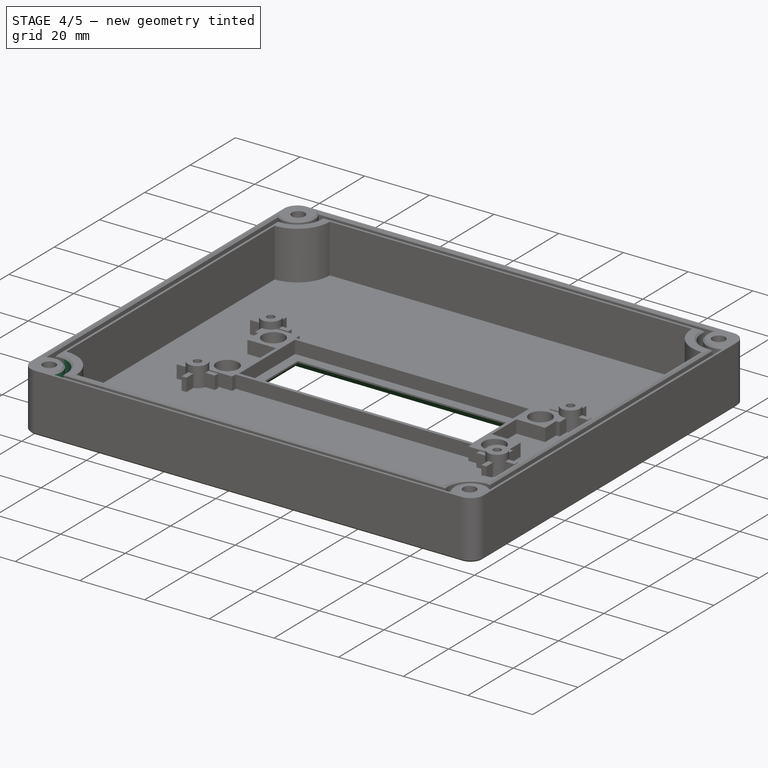
[diagram: stage 4 of 5 — iso view after this stage's code; geometry added in this stage tinted green]
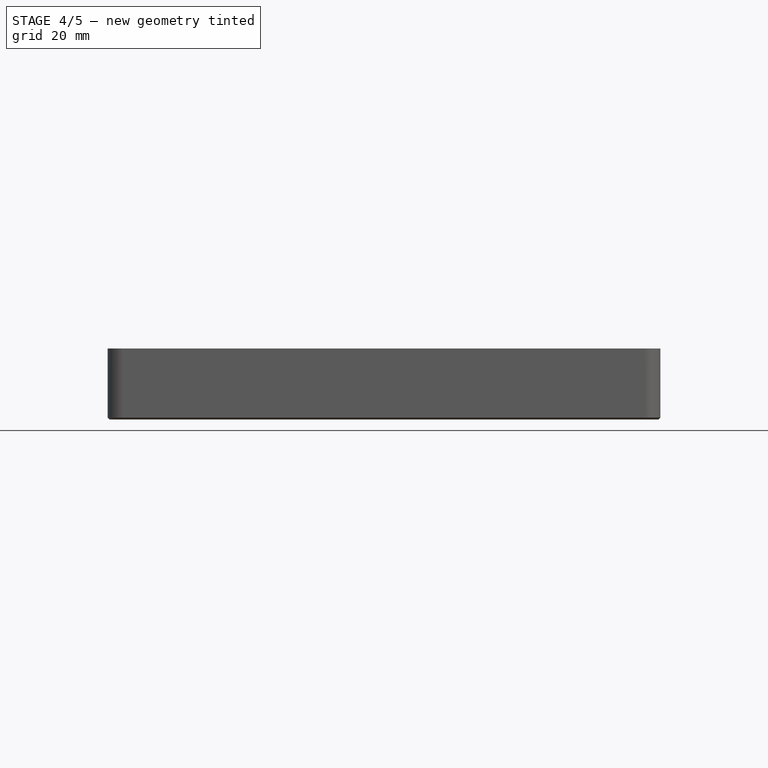
[diagram: stage 4 of 5 — front view after this stage's code; geometry added in this stage tinted green]
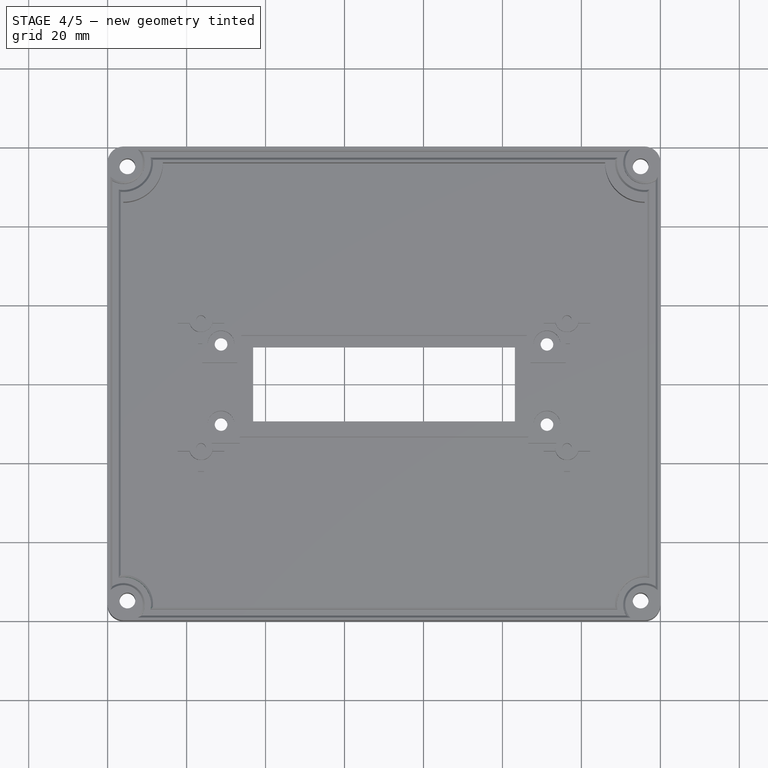
[diagram: stage 4 of 5 — top view after this stage's code; geometry added in this stage tinted green]
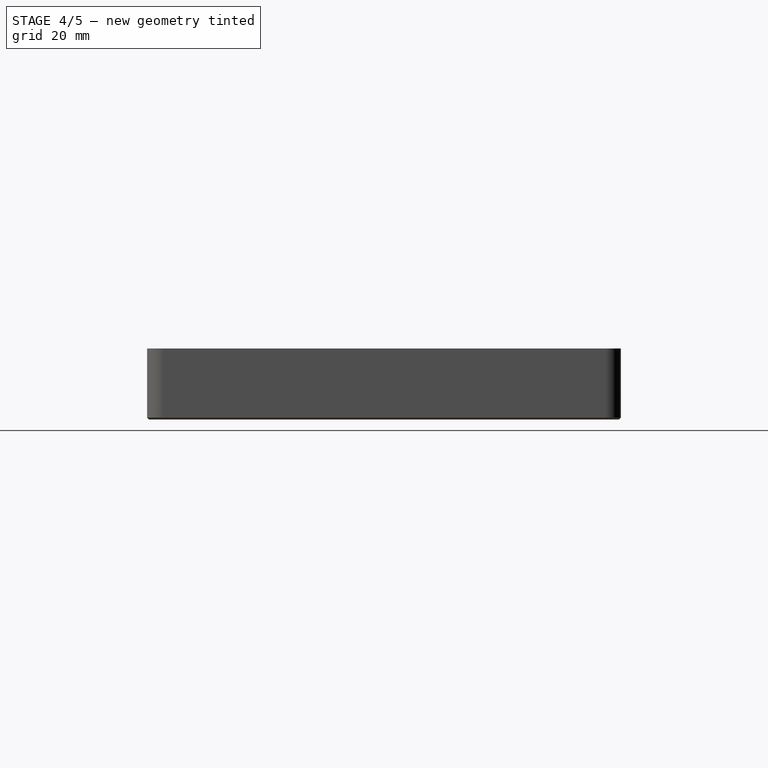
[diagram: stage 4 of 5 — right view after this stage's code; geometry added in this stage tinted green]
FEATURE [PartDesign::Chamfer] Chamfer
  Angle = 45
  Base = -> Pad006 [Edge11,Edge6,Edge3,Edge13,Edge15,Edge14,Edge12,Edge9]
  BaseFeature = -> Pad006
  ChamferType = 0
  FlipDirection = false
  Size = 0.5
  Size2 = 1
  SupportTransform = false
FEATURE [PartDesign::Chamfer] Chamfer001
  Angle = 45
  Base = -> Chamfer [Edge56,Edge57,Edge58,Edge159,Edge157,Edge161,Edge163,Edge59,Edge60,Edge164,Edge151,Edge53,Edge153,Edge54,Edge155,Edge55]
  BaseFeature = -> Chamfer
  ChamferType = 0
  FlipDirection = false
  Size = 0.5
  Size2 = 1
  SupportTransform = false
FEATURE [PartDesign::Chamfer] Chamfer002
  Angle = 45
  Base = -> Chamfer001 [Edge60,Edge56,Edge54,Edge58]
  BaseFeature = -> Chamfer001
  ChamferType = 0
  FlipDirection = false
  Size = 2
  Size2 = 1
  SupportTransform = false
FEATURE [PartDesign::Chamfer] Chamfer003
  Angle = 45
  Base = -> Chamfer002 [Edge39,Edge40,Edge38,Edge37]
  BaseFeature = -> Chamfer002
  ChamferType = 0
  FlipDirection = false
  Size = 2.5
  Size2 = 1
  SupportTransform = false
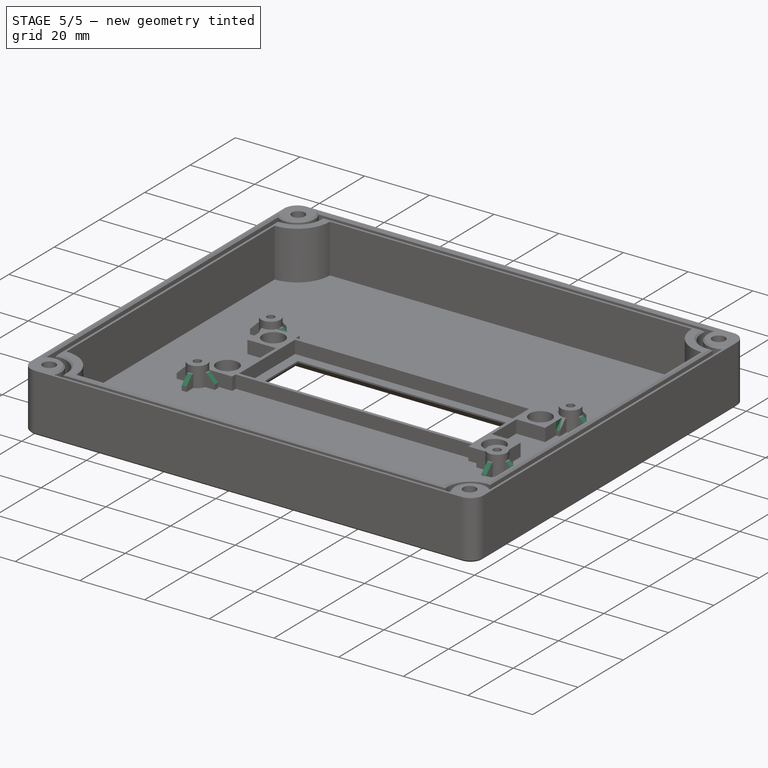
[diagram: stage 5 of 5 — iso view after this stage's code; geometry added in this stage tinted green]
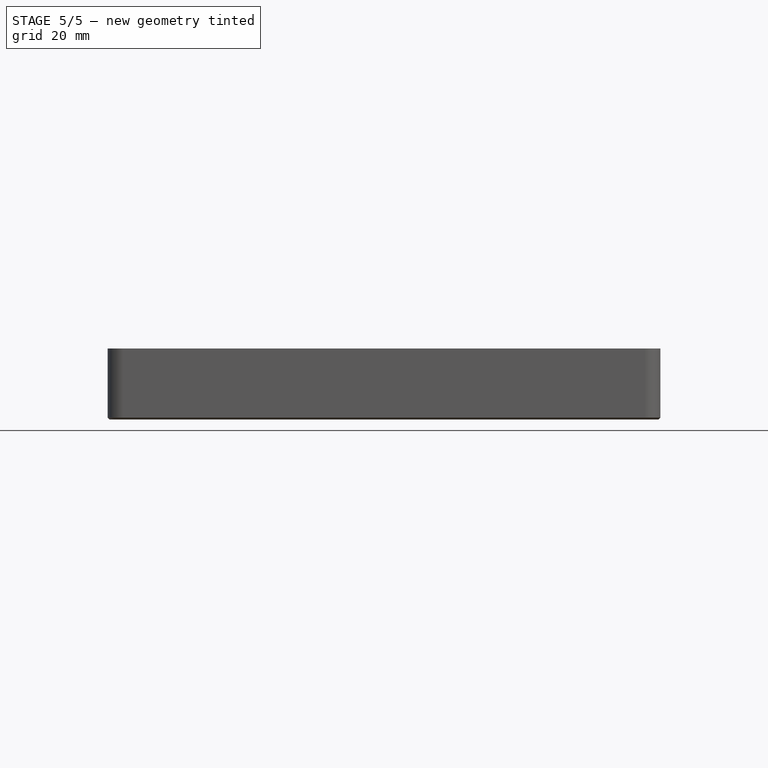
[diagram: stage 5 of 5 — front view after this stage's code; geometry added in this stage tinted green]
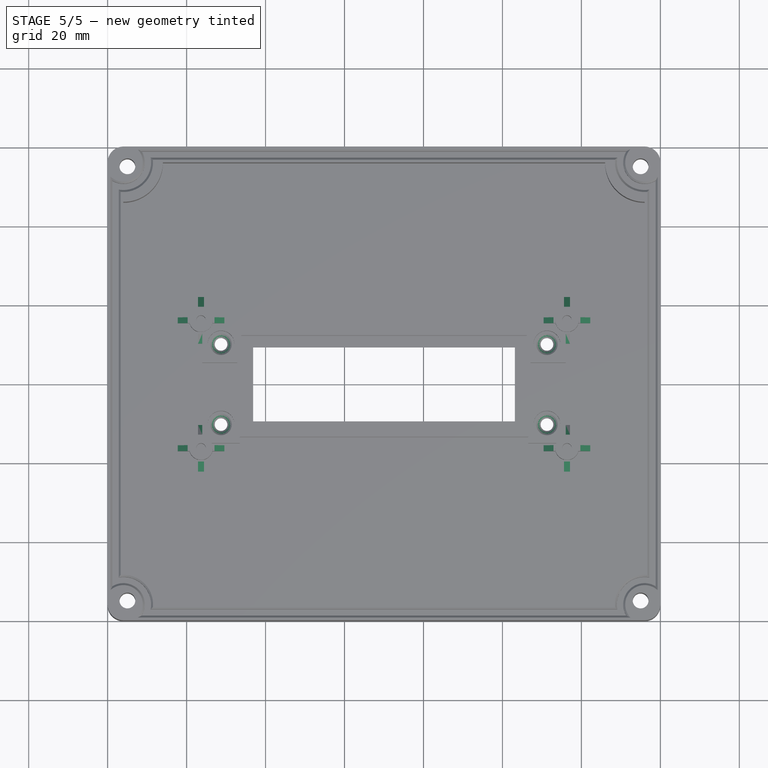
[diagram: stage 5 of 5 — top view after this stage's code; geometry added in this stage tinted green]
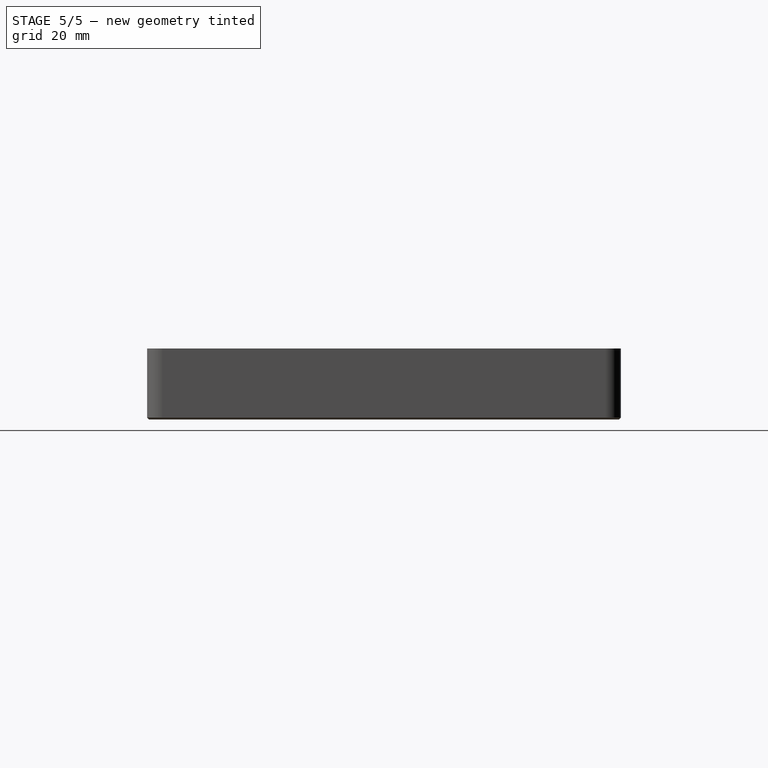
[diagram: stage 5 of 5 — right view after this stage's code; geometry added in this stage tinted green]
FEATURE [PartDesign::Chamfer] Chamfer004
  Angle = 45
  Base = -> Chamfer003 [Edge17,Edge15,Edge16,Edge14]
  BaseFeature = -> Chamfer003
  ChamferType = 0
  FlipDirection = false
  Size = 0.8
  Size2 = 1
  SupportTransform = false
FEATURE [PartDesign::Chamfer] Chamfer005
  Angle = 45
  Base = -> Chamfer004 [Edge96,Edge100,Edge98,Edge62]
  BaseFeature = -> Chamfer004
  ChamferType = 0
  FlipDirection = false
  Size = 1.1
  Size2 = 1
  SupportTransform = false
FEATURE [PartDesign::Chamfer] Chamfer006
  Angle = 45
  Base = -> Chamfer005 [Edge390,Edge385,Edge380,Edge394,Edge463,Edge458,Edge453,Edge447,Edge437,Edge432,Edge427,Edge422,Edge293,Edge279,Edge285,Edge289]
  BaseFeature = -> Chamfer005
  ChamferType = 0
  FlipDirection = false
  Size = 2.5
  Size2 = 1
  SupportTransform = false
FEATURE [PartDesign::Body] Body
  Group = -> [Sketch,Pad,Sketch001,Pad001,Sketch002,Pocket,Sketch003,Pocket001,Sketch004,Pad002,Sketch005,Pad003,Sketch006,Pocket002,Sketch008,Pocket003,Sketch009,Pad005,Sketch010,Pad006,Chamfer,Chamfer001,Chamfer002,Chamfer003,Chamfer004,Chamfer005,Chamfer006]
  Origin = -> Origin
  Tip = -> Chamfer006
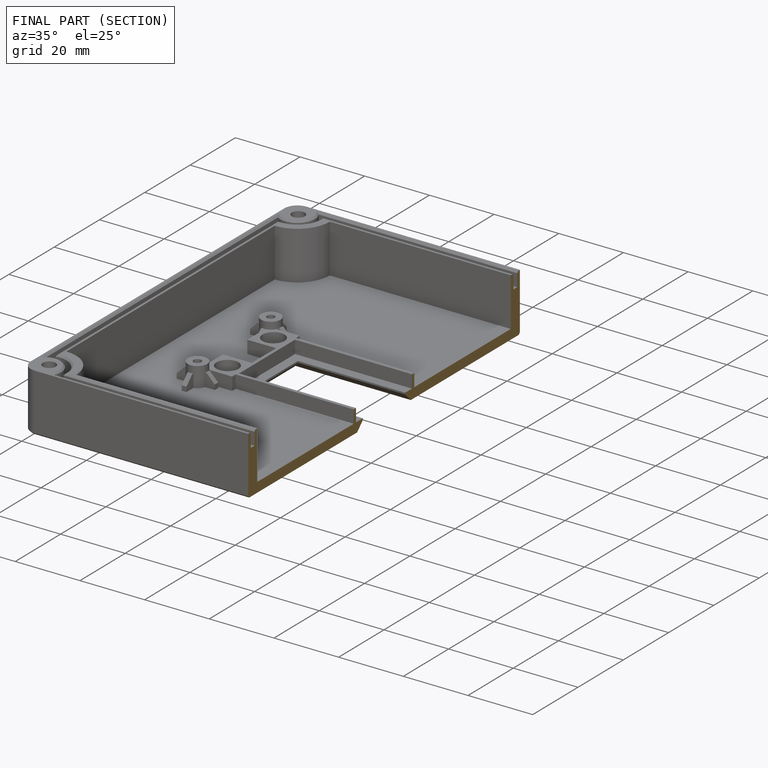
[diagram: finished part — half-section view (interior)]
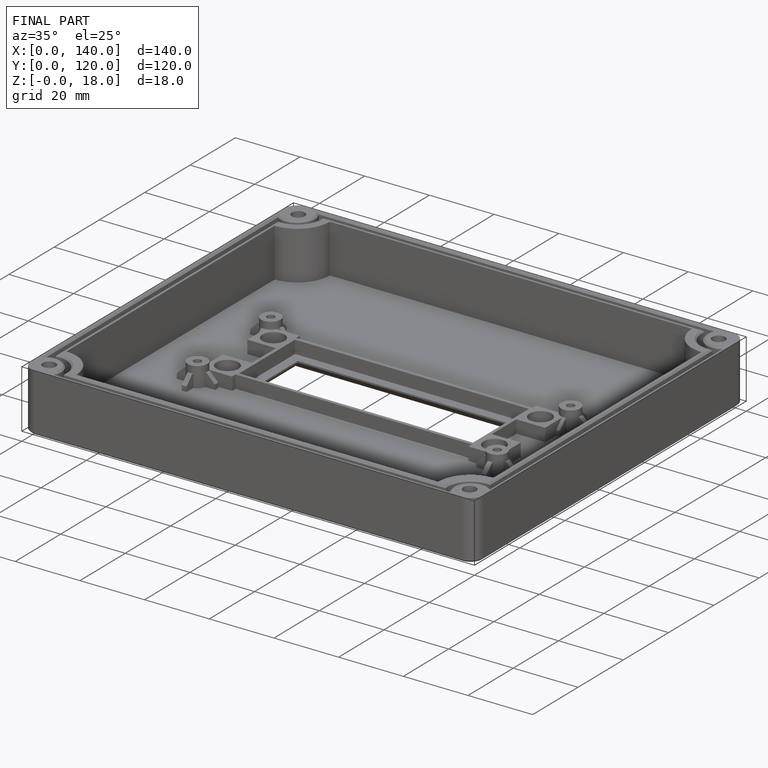
[diagram: finished part — iso view with bounding-box wireframe]
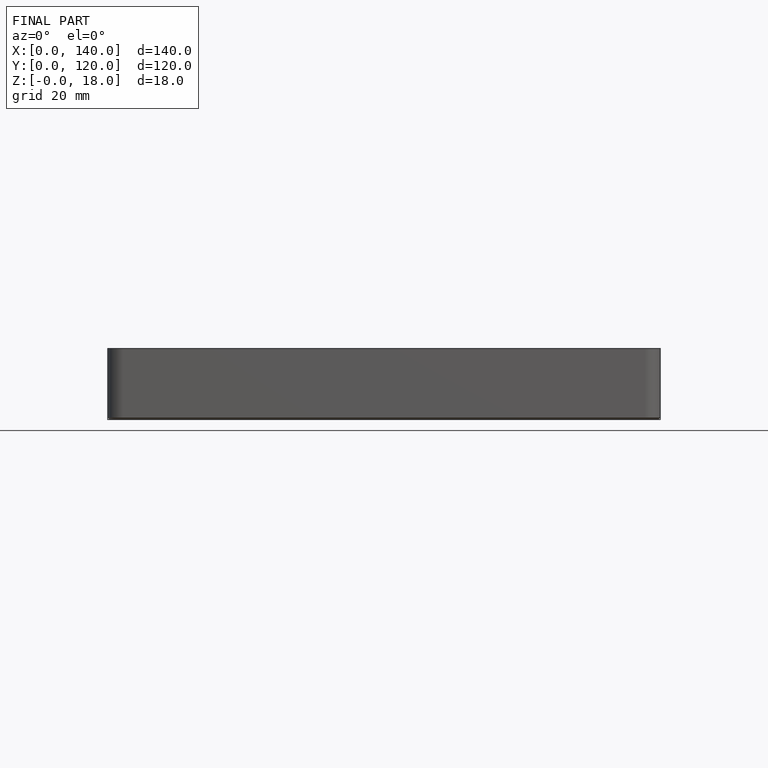
[diagram: finished part — front view with bounding-box wireframe]
